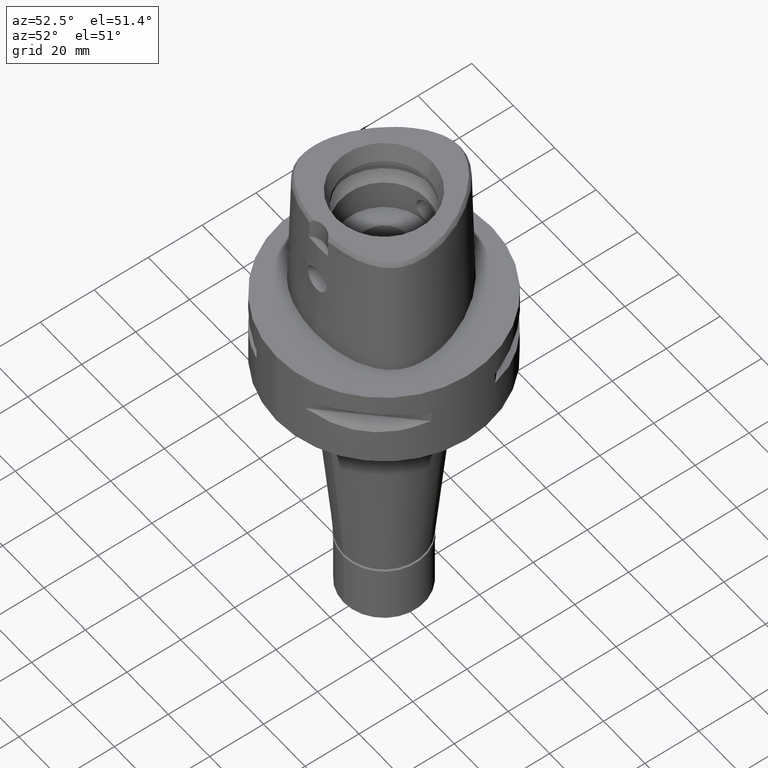
[diagram: clean part render]
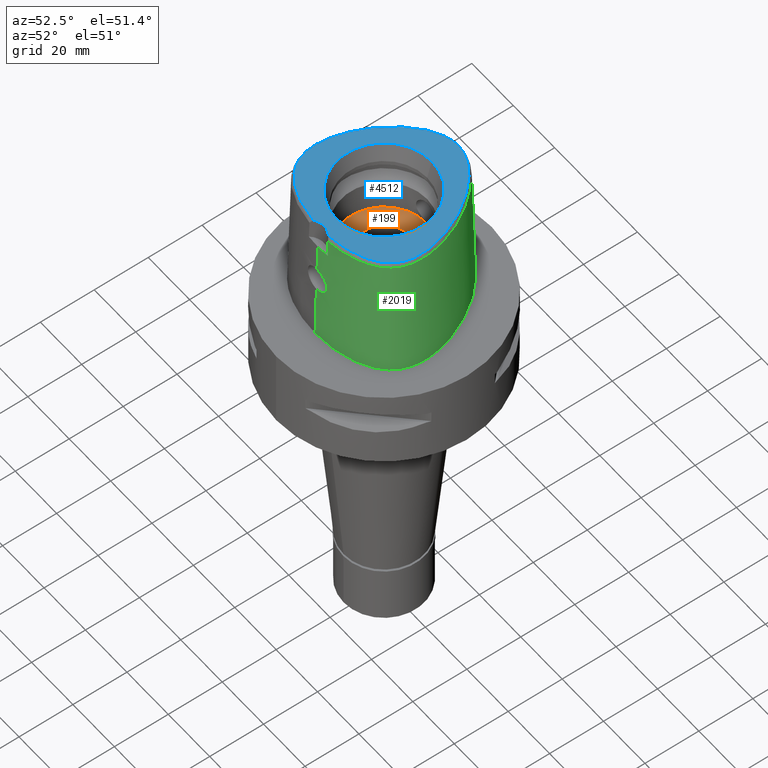
[diagram: same view with three faces highlighted in distinct colors, each labeled with its STEP entity id]
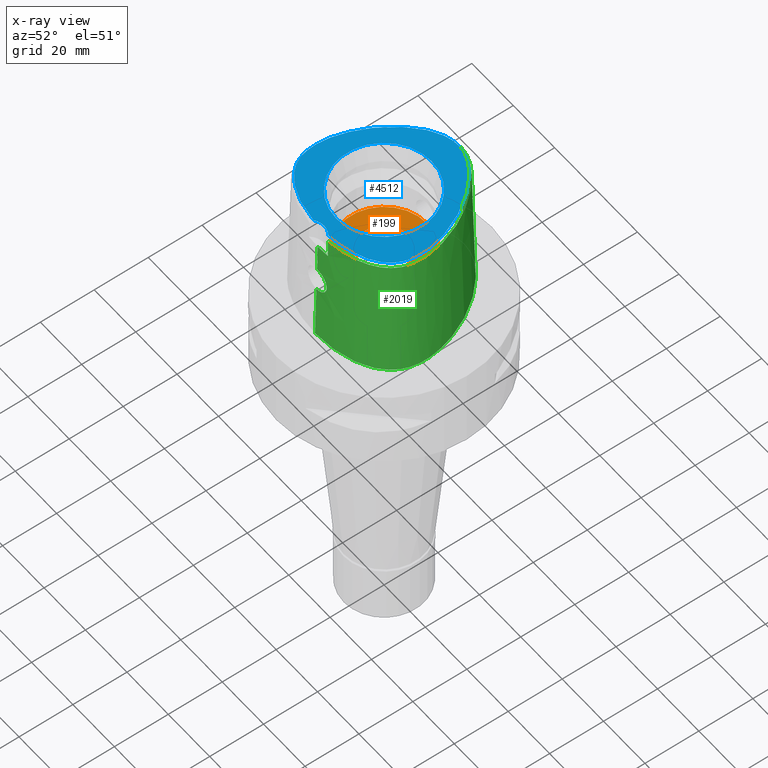
[diagram: x-ray of the same camera — body ghosted, the three highlighted faces saturated]
A machine part, auxiliary view with three faces highlighted in distinct colors.
The next image is the same camera in x-ray (body ghosted, the three faces saturated) — at least one of them is partly hidden behind the body in this view.
Their STEP definitions:

[orange] entity #199 — the highlighted planar face has unit normal (0, 0, -1).
#190 = CARTESIAN_POINT ( 'NONE',  ( 0.0000000000000000000, 0.0000000000000000000, 20.00000000000000000 ) ) ;
#199 = ADVANCED_FACE ( 'NONE', ( #3538, #5046 ), #4720, .F. ) ;
#217 = DIRECTION ( 'NONE',  ( 0.0000000000000000000, 0.0000000000000000000, 1.000000000000000000 ) ) ;
#276 = EDGE_CURVE ( 'NONE', #1156, #3808, #3494, .T. ) ;
#288 = EDGE_LOOP ( 'NONE', ( #4421, #2677 ) ) ;
#295 = DIRECTION ( 'NONE',  ( 0.0000000000000000000, 1.000000000000000000, 0.0000000000000000000 ) ) ;
#524 = VERTEX_POINT ( 'NONE', #4711 ) ;
#681 = CARTESIAN_POINT ( 'NONE',  ( 0.0000000000000000000, 0.0000000000000000000, 20.00000000000000000 ) ) ;
#782 = AXIS2_PLACEMENT_3D ( 'NONE', #190, #217, #2608 ) ;
#1100 = DIRECTION ( 'NONE',  ( 0.0000000000000000000, 0.0000000000000000000, -1.000000000000000000 ) ) ;
#1156 = VERTEX_POINT ( 'NONE', #4217 ) ;
#1183 = CARTESIAN_POINT ( 'NONE',  ( 0.0000000000000000000, 0.0000000000000000000, 20.00000000000000000 ) ) ;
#1283 = CARTESIAN_POINT ( 'NONE',  ( 0.0000000000000000000, -9.000000000000000000, 20.00000000000000000 ) ) ;
#1337 = DIRECTION ( 'NONE',  ( 0.0000000000000000000, 0.0000000000000000000, 1.000000000000000000 ) ) ;
#1793 = DIRECTION ( 'NONE',  ( 0.0000000000000000000, 1.000000000000000000, 0.0000000000000000000 ) ) ;
#2160 = DIRECTION ( 'NONE',  ( 0.0000000000000000000, -1.000000000000000000, 0.0000000000000000000 ) ) ;
#2196 = ORIENTED_EDGE ( 'NONE', *, *, #276, .F. ) ;
#2381 = EDGE_CURVE ( 'NONE', #524, #3294, #4679, .T. ) ;
#2608 = DIRECTION ( 'NONE',  ( 0.0000000000000000000, -1.000000000000000000, 0.0000000000000000000 ) ) ;
#2611 = CIRCLE ( 'NONE', #4181, 16.00000000000000000 ) ;
#2677 = ORIENTED_EDGE ( 'NONE', *, *, #2381, .F. ) ;
#2906 = AXIS2_PLACEMENT_3D ( 'NONE', #1183, #4345, #5135 ) ;
#3294 = VERTEX_POINT ( 'NONE', #1283 ) ;
#3308 = CARTESIAN_POINT ( 'NONE',  ( 0.0000000000000000000, 0.0000000000000000000, 20.00000000000000000 ) ) ;
#3494 = CIRCLE ( 'NONE', #4575, 16.00000000000000000 ) ;
#3496 = ORIENTED_EDGE ( 'NONE', *, *, #4382, .F. ) ;
#3507 = AXIS2_PLACEMENT_3D ( 'NONE', #3308, #1337, #1793 ) ;
#3538 = FACE_OUTER_BOUND ( 'NONE', #3728, .T. ) ;
#3728 = EDGE_LOOP ( 'NONE', ( #3496, #2196 ) ) ;
#3775 = CARTESIAN_POINT ( 'NONE',  ( 0.0000000000000000000, 0.0000000000000000000, 20.00000000000000000 ) ) ;
#3808 = VERTEX_POINT ( 'NONE', #4545 ) ;
#4130 = DIRECTION ( 'NONE',  ( 0.0000000000000000000, 0.0000000000000000000, -1.000000000000000000 ) ) ;
#4181 = AXIS2_PLACEMENT_3D ( 'NONE', #3775, #4130, #2160 ) ;
#4217 = CARTESIAN_POINT ( 'NONE',  ( 0.0000000000000000000, 16.00000000000000000, 20.00000000000000000 ) ) ;
#4345 = DIRECTION ( 'NONE',  ( 0.0000000000000000000, 0.0000000000000000000, -1.000000000000000000 ) ) ;
#4382 = EDGE_CURVE ( 'NONE', #3808, #1156, #2611, .T. ) ;
#4421 = ORIENTED_EDGE ( 'NONE', *, *, #4463, .F. ) ;
#4463 = EDGE_CURVE ( 'NONE', #3294, #524, #4778, .T. ) ;
#4545 = CARTESIAN_POINT ( 'NONE',  ( 0.0000000000000000000, -16.00000000000000000, 20.00000000000000000 ) ) ;
#4575 = AXIS2_PLACEMENT_3D ( 'NONE', #681, #1100, #295 ) ;
#4679 = CIRCLE ( 'NONE', #3507, 9.000000000000000000 ) ;
#4711 = CARTESIAN_POINT ( 'NONE',  ( 0.0000000000000000000, 9.000000000000000000, 20.00000000000000000 ) ) ;
#4720 = PLANE ( 'NONE',  #2906 ) ;
#4778 = CIRCLE ( 'NONE', #782, 9.000000000000000000 ) ;
#5046 = FACE_BOUND ( 'NONE', #288, .T. ) ;
#5135 = DIRECTION ( 'NONE',  ( 0.0000000000000000000, -1.000000000000000000, 0.0000000000000000000 ) ) ;

[blue] entity #4512 — the highlighted planar face has unit normal (0, 0, 1).
#1 = CARTESIAN_POINT ( 'NONE',  ( 3.680297990135762198, 27.05591354500018753, 48.00000000000627409 ) ) ;
#5 = CARTESIAN_POINT ( 'NONE',  ( -4.489954052493332348, 26.80204639255186549, 48.00000000000155609 ) ) ;
#32 = CARTESIAN_POINT ( 'NONE',  ( 12.14811716929801300, 22.13187320259065416, 48.00000000000274980 ) ) ;
#56 = CARTESIAN_POINT ( 'NONE',  ( 16.58774972841575845, 17.44522137221830604, 48.00000000000598277 ) ) ;
#83 = CARTESIAN_POINT ( 'NONE',  ( -15.47246034441952567, 18.77924032487290162, 48.00000000000662936 ) ) ;
#111 = CARTESIAN_POINT ( 'NONE',  ( -2.139154069216931742, 27.40627708266839235, 48.00000000000774492 ) ) ;
#153 = CARTESIAN_POINT ( 'NONE',  ( 3.652533226355999751, -23.43985283522000174, 48.00000000000000000 ) ) ;
#198 = CIRCLE ( 'NONE', #3114, 17.71487483155999954 ) ;
#264 = EDGE_LOOP ( 'NONE', ( #3547, #1039, #3095 ) ) ;
#268 = CARTESIAN_POINT ( 'NONE',  ( 0.0000000000000000000, 0.0000000000000000000, 48.00000000000000000 ) ) ;
#308 = CARTESIAN_POINT ( 'NONE',  ( -24.00645943640589053, -13.59502449743925645, 48.00000000000818545 ) ) ;
#355 = CARTESIAN_POINT ( 'NONE',  ( 23.18188527997866544, 6.195157684106624707, 48.00000000000344613 ) ) ;
#374 = VERTEX_POINT ( 'NONE', #3277 ) ;
#380 = CARTESIAN_POINT ( 'NONE',  ( 25.79052179444724757, -6.319355031379641829, 48.00000000001378453 ) ) ;
#385 = CARTESIAN_POINT ( 'NONE',  ( -25.78814000082636682, -5.219183132163908390, 48.00000000000384404 ) ) ;
#401 = CARTESIAN_POINT ( 'NONE',  ( 20.51253914624653163, -17.67119446945624617, 47.99999999999898392 ) ) ;
#405 = CARTESIAN_POINT ( 'NONE',  ( 0.0000000000000000000, -17.71487483155999954, 48.00000000000000000 ) ) ;
#422 = CARTESIAN_POINT ( 'NONE',  ( 24.32795549673362956, -12.97211154200113370, 48.00000000001178790 ) ) ;
#441 = CARTESIAN_POINT ( 'NONE',  ( 0.0000000000000000000, -28.19999999999999929, 48.00000000000000000 ) ) ;
#449 = CARTESIAN_POINT ( 'NONE',  ( -2.553408000997999971E-11, 27.58331912251000162, 48.00000000000000000 ) ) ;
#454 = CARTESIAN_POINT ( 'NONE',  ( -5.330667503235264171, 26.48886318459890887, 48.00000000000245848 ) ) ;
#597 = DIRECTION ( 'NONE',  ( 0.0000000000000000000, -1.000000000000000000, 0.0000000000000000000 ) ) ;
#635 = FACE_OUTER_BOUND ( 'NONE', #264, .T. ) ;
#691 = CARTESIAN_POINT ( 'NONE',  ( -14.81597509389810341, -20.94671102737374824, 47.99999999999746336 ) ) ;
#720 = CARTESIAN_POINT ( 'NONE',  ( -22.32985285487972860, -15.94550431090771525, 48.00000000000452616 ) ) ;
#742 = CARTESIAN_POINT ( 'NONE',  ( -20.51077223929994986, -17.67263102127178342, 48.00000000000376588 ) ) ;
#764 = CARTESIAN_POINT ( 'NONE',  ( 12.15683615293508346, -21.88711351950870565, 48.00000000000375877 ) ) ;
#769 = CARTESIAN_POINT ( 'NONE',  ( -13.53666233734178981, -21.43297585322252630, 47.99999999999994316 ) ) ;
#791 = CARTESIAN_POINT ( 'NONE',  ( 22.33100613406205426, -15.94420923685231983, 48.00000000000456879 ) ) ;
#794 = CARTESIAN_POINT ( 'NONE',  ( -2.895995683504754226, 27.25632069045362726, 47.99999999999965183 ) ) ;
#811 = CARTESIAN_POINT ( 'NONE',  ( 2.140583849880590250, 27.40603513869652019, 48.00000000000656541 ) ) ;
#835 = CARTESIAN_POINT ( 'NONE',  ( 10.03889926273841837, 23.82643791975764458, 48.00000000001134737 ) ) ;
#840 = CARTESIAN_POINT ( 'NONE',  ( -0.6921675427513019896, 27.57027402750101786, 48.00000000000871836 ) ) ;
#861 = CARTESIAN_POINT ( 'NONE',  ( 0.6937438505403403788, 27.57019898701157601, 48.00000000000598277 ) ) ;
#981 = CARTESIAN_POINT ( 'NONE',  ( -23.18199738827263801, 6.194888181192760079, 47.99999999999587175 ) ) ;
#1039 = ORIENTED_EDGE ( 'NONE', *, *, #4136, .F. ) ;
#1127 = DIRECTION ( 'NONE',  ( 0.6087555377260667200, 0.7933578607966567109, 0.0000000000000000000 ) ) ;
#1143 = CARTESIAN_POINT ( 'NONE',  ( -15.99341638177290115, -20.43562447749014765, 48.00000000000018474 ) ) ;
#1164 = CARTESIAN_POINT ( 'NONE',  ( 14.81975810290976980, -20.94516920634634261, 48.00000000000574829 ) ) ;
#1177 = EDGE_CURVE ( 'NONE', #374, #3798, #4525, .T. ) ;
#1189 = CARTESIAN_POINT ( 'NONE',  ( 25.41171405093978208, -1.468769615952986163, 48.00000000001289635 ) ) ;
#1216 = CARTESIAN_POINT ( 'NONE',  ( 21.64191216433456333, 9.570096010441679013, 48.00000000000925127 ) ) ;
#1235 = CARTESIAN_POINT ( 'NONE',  ( 14.35433142683476326, 20.00604447574794165, 47.99999999999931788 ) ) ;
#1259 = CARTESIAN_POINT ( 'NONE',  ( 23.65541542675246589, -14.18997106324635205, 48.00000000000774492 ) ) ;
#1413 = PLANE ( 'NONE',  #4929 ) ;
#1498 = CARTESIAN_POINT ( 'NONE',  ( -9.073991136863204687, -22.67767904108685784, 47.99999999999887734 ) ) ;
#1524 = CARTESIAN_POINT ( 'NONE',  ( 0.0000000000000000000, 17.71487483155999954, 48.00000000000000000 ) ) ;
#1551 = EDGE_CURVE ( 'NONE', #3798, #2229, #3918, .T. ) ;
#1552 = CARTESIAN_POINT ( 'NONE',  ( 18.06021793802453956, -19.35923481219365172, 48.00000000000142109 ) ) ;
#1576 = CARTESIAN_POINT ( 'NONE',  ( 1.407937999592558720, 27.50970958195385307, 48.00000000000411404 ) ) ;
#1579 = CARTESIAN_POINT ( 'NONE',  ( -24.34597371488804285, 2.947766319393087642, 48.00000000000777334 ) ) ;
#1607 = AXIS2_PLACEMENT_3D ( 'NONE', #1689, #2934, #597 ) ;
#1622 = CARTESIAN_POINT ( 'NONE',  ( 19.78466709480228047, 12.88995995782244641, 48.00000000000724043 ) ) ;
#1625 = CARTESIAN_POINT ( 'NONE',  ( -12.14717624329265533, 22.13270362300982796, 48.00000000000715517 ) ) ;
#1642 = CARTESIAN_POINT ( 'NONE',  ( 25.74155027847324817, -7.352132003090048329, 48.00000000000844125 ) ) ;
#1689 = CARTESIAN_POINT ( 'NONE',  ( 0.0000000000000000000, 0.0000000000000000000, 48.00000000000000000 ) ) ;
#1781 = CARTESIAN_POINT ( 'NONE',  ( -25.41186334294972937, -1.469639852780138201, 48.00000000000411404 ) ) ;
#1822 = VERTEX_POINT ( 'NONE', #1524 ) ;
#1874 = ORIENTED_EDGE ( 'NONE', *, *, #4675, .F. ) ;
#1879 = CARTESIAN_POINT ( 'NONE',  ( -25.64644810599435232, -8.319642749356479072, 48.00000000000247269 ) ) ;
#1909 = CARTESIAN_POINT ( 'NONE',  ( -25.74147105879062991, -7.353240448490128145, 48.00000000000689937 ) ) ;
#1935 = CARTESIAN_POINT ( 'NONE',  ( 25.78811069501452735, -5.218135357747353709, 48.00000000000760281 ) ) ;
#1961 = CARTESIAN_POINT ( 'NONE',  ( 23.26225374360183906, -14.77782433121586259, 48.00000000000728306 ) ) ;
#1966 = CARTESIAN_POINT ( 'NONE',  ( -24.89056289417114343, -11.61105474084639688, 48.00000000000351719 ) ) ;
#1982 = CARTESIAN_POINT ( 'NONE',  ( 22.45659887780471919, 7.877591736060170824, 48.00000000000790124 ) ) ;
#1986 = CARTESIAN_POINT ( 'NONE',  ( -11.07816725942145375, 23.03133635782254629, 48.00000000000027001 ) ) ;
#2005 = CARTESIAN_POINT ( 'NONE',  ( 24.89096213678472225, -11.60991207239310441, 48.00000000000385114 ) ) ;
#2011 = CARTESIAN_POINT ( 'NONE',  ( -22.45665628223817478, 7.877471279648056601, 47.99999999999953104 ) ) ;
#2024 = DIRECTION ( 'NONE',  ( 0.0000000000000000000, 0.0000000000000000000, 1.000000000000000000 ) ) ;
#2033 = CARTESIAN_POINT ( 'NONE',  ( 5.331982176208730273, 26.48833275828421208, 48.00000000000827072 ) ) ;
#2038 = CARTESIAN_POINT ( 'NONE',  ( -18.76020591297942275, 14.48413071376346473, 48.00000000000462563 ) ) ;
#2048 = CARTESIAN_POINT ( 'NONE',  ( 3.652533226355999751, -23.43985283522000174, 48.00000000000000000 ) ) ;
#2055 = CARTESIAN_POINT ( 'NONE',  ( 3.695072017992800273, -23.43648746218407908, 48.00000000000586908 ) ) ;
#2102 = ORIENTED_EDGE ( 'NONE', *, *, #3065, .F. ) ;
#2166 = B_SPLINE_CURVE_WITH_KNOTS ( 'NONE', 3,
 ( #2978, #3945, #4729, #2304, #5089, #1498, #4571, #3113, #769, #691, #1143, #4273, #4707, #2719, #5147, #742, #3081, #3886, #720, #2744, #4143, #2591, #308, #4326, #2357, #1966, #2174, #2276, #3861, #1879, #1909, #2328, #385, #2563, #3497, #1781, #3550, #3759, #1579, #3165, #981, #2011, #2457, #3212, #3573, #2038, #4845, #2382, #83, #4456, #2431, #1625, #1986, #4358, #2769, #4780, #4799, #3644, #454, #5, #3189, #794, #111, #2841, #840, #3258, #2870 ),
 .UNSPECIFIED., .F., .F.,
 ( 4, 1, 1, 1, 1, 1, 1, 1, 1, 1, 1, 1, 1, 1, 1, 1, 1, 1, 1, 1, 1, 1, 1, 1, 1, 1, 1, 1, 1, 1, 1, 1, 1, 1, 1, 1, 1, 1, 1, 1, 1, 1, 1, 1, 1, 1, 1, 1, 1, 1, 1, 1, 1, 1, 1, 1, 1, 1, 1, 1, 1, 1, 1, 1, 4 ),
 ( 0.0000000000000000000, 0.001025211071800091744, 0.01688195375320000746, 0.03273869643469995427, 0.04859543911610009204, 0.06445218179750000775, 0.08030892447889992347, 0.09616566716030006123, 0.1120224098416999770, 0.1278791525231999238, 0.1437358952045000304, 0.1595926378859000572, 0.1754493805672999729, 0.1913061232486999996, 0.2071628659301000264, 0.2230196086114999421, 0.2388763512929999999, 0.2547330939744000267, 0.2705898366558000534, 0.2864465793371999691, 0.3023033220184999648, 0.3181600646999001025, 0.3340168073814000493, 0.3498735500627999651, 0.3657302927441999918, 0.3815870354256000185, 0.3974437781070000453, 0.4133005207884000720, 0.4291572634697999877, 0.4450140061513000456, 0.4608707488326000412, 0.4767274915139999569, 0.4925842341953999837, 0.5084409768768000104, 0.5242977195582000371, 0.5401544622396999840, 0.5560112049211000107, 0.5718679476025000374, 0.5877246902838999532, 0.6035814329652000598, 0.6194381756466000866, 0.6352949183280000023, 0.6511516610095000601, 0.6670084036908999758, 0.6828651463723000026, 0.6987218890537000293, 0.7145786317350999450, 0.7304353744164999718, 0.7462921170980000296, 0.7621488597793000253, 0.7780056024607000520, 0.7938623451421000787, 0.8097190878234999944, 0.8255758305049000212, 0.8414325731862999369, 0.8572893158677999947, 0.8731460585492000215, 0.8890028012306000482, 0.9048595439119599959, 0.9207162865933600226, 0.9365730292747700414, 0.9524297719561699571, 0.9682865146375799759, 0.9841432573189800026, 1.000000000000000000 ),
 .UNSPECIFIED. ) ;
#2174 = CARTESIAN_POINT ( 'NONE',  ( -25.12916461511102995, -10.86541650940823445, 47.99999999999922551 ) ) ;
#2216 = CARTESIAN_POINT ( 'NONE',  ( 0.0000000000000000000, 0.0000000000000000000, 48.00000000000000000 ) ) ;
#2229 = VERTEX_POINT ( 'NONE', #2508 ) ;
#2276 = CARTESIAN_POINT ( 'NONE',  ( -25.33661149944440538, -10.07113708571157495, 48.00000000000659384 ) ) ;
#2304 = CARTESIAN_POINT ( 'NONE',  ( -5.621443921965724400, -23.25305008129026518, 48.00000000000829914 ) ) ;
#2328 = CARTESIAN_POINT ( 'NONE',  ( -25.79049889473787616, -6.320436011330484050, 47.99999999999741362 ) ) ;
#2351 = CARTESIAN_POINT ( 'NONE',  ( 9.029067995419627124, 24.52649931749731849, 48.00000000000736833 ) ) ;
#2357 = CARTESIAN_POINT ( 'NONE',  ( -24.62272929601504146, -12.31262433038932080, 47.99999999999783995 ) ) ;
#2377 = CARTESIAN_POINT ( 'NONE',  ( 20.74842146925734454, 11.24651447313797981, 48.00000000000755307 ) ) ;
#2382 = CARTESIAN_POINT ( 'NONE',  ( -16.58720414441551227, 17.44590650687256073, 47.99999999999414513 ) ) ;
#2398 = CARTESIAN_POINT ( 'NONE',  ( 2.897393261679240606, 27.25600202852899301, 48.00000000000158451 ) ) ;
#2424 = CARTESIAN_POINT ( 'NONE',  ( 4.491298471526994796, 26.80158405531638266, 48.00000000000458300 ) ) ;
#2431 = CARTESIAN_POINT ( 'NONE',  ( -13.24182048140766454, 21.12501160990628790, 47.99999999999421618 ) ) ;
#2457 = CARTESIAN_POINT ( 'NONE',  ( -21.64189922317061843, 9.570126786845092326, 48.00000000000027711 ) ) ;
#2508 = CARTESIAN_POINT ( 'NONE',  ( -3.652529789304999941, -23.43985019791999846, 48.00000000000000000 ) ) ;
#2563 = CARTESIAN_POINT ( 'NONE',  ( -25.72853642076715275, -4.045150056829699636, 48.00000000000047606 ) ) ;
#2591 = CARTESIAN_POINT ( 'NONE',  ( -23.65469623604841942, -14.19111717468738831, 48.00000000000031264 ) ) ;
#2719 = CARTESIAN_POINT ( 'NONE',  ( -18.95547945644992183, -18.80500687501592694, 48.00000000000287770 ) ) ;
#2738 = DIRECTION ( 'NONE',  ( 0.0000000000000000000, 1.000000000000000000, 0.0000000000000000000 ) ) ;
#2740 = CARTESIAN_POINT ( 'NONE',  ( 18.95779336836574913, -18.80349047535468898, 48.00000000000578382 ) ) ;
#2744 = CARTESIAN_POINT ( 'NONE',  ( -22.82072892860547597, -15.36398915678375232, 48.00000000000641620 ) ) ;
#2765 = CARTESIAN_POINT ( 'NONE',  ( 25.12949508357400319, -10.86427360166302591, 48.00000000000234479 ) ) ;
#2769 = CARTESIAN_POINT ( 'NONE',  ( -9.027913645275798871, 24.52726119145112449, 47.99999999999953815 ) ) ;
#2789 = CARTESIAN_POINT ( 'NONE',  ( 24.78780591084244378, 1.407047860335326472, 48.00000000000244427 ) ) ;
#2809 = CARTESIAN_POINT ( 'NONE',  ( 24.62320007856895998, -12.31148373400931284, 48.00000000000670752 ) ) ;
#2835 = CARTESIAN_POINT ( 'NONE',  ( 13.24267791555492479, 21.12418368643687927, 48.00000000000446931 ) ) ;
#2841 = CARTESIAN_POINT ( 'NONE',  ( -1.406513445700786402, 27.50987728443544356, 48.00000000000476064 ) ) ;
#2870 = CARTESIAN_POINT ( 'NONE',  ( -2.553408000997999971E-11, 27.58331912251000162, 48.00000000000000000 ) ) ;
#2909 = CARTESIAN_POINT ( 'NONE',  ( 5.628119991152743751, -23.25222728396760630, 48.00000000001084999 ) ) ;
#2914 = DIRECTION ( 'NONE',  ( 0.0000000000000000000, 0.0000000000000000000, 1.000000000000000000 ) ) ;
#2934 = DIRECTION ( 'NONE',  ( 0.0000000000000000000, 0.0000000000000000000, 1.000000000000000000 ) ) ;
#2978 = CARTESIAN_POINT ( 'NONE',  ( -3.652529789304999941, -23.43985019791999846, 48.00000000000000000 ) ) ;
#3065 = EDGE_CURVE ( 'NONE', #4201, #1822, #4429, .T. ) ;
#3074 = DIRECTION ( 'NONE',  ( 0.0000000000000000000, 0.0000000000000000000, 1.000000000000000000 ) ) ;
#3081 = CARTESIAN_POINT ( 'NONE',  ( -21.17991838302091523, -17.09989881137762424, 48.00000000000522249 ) ) ;
#3095 = ORIENTED_EDGE ( 'NONE', *, *, #1551, .F. ) ;
#3113 = CARTESIAN_POINT ( 'NONE',  ( -12.15213727003041022, -21.88854758766736808, 48.00000000000298428 ) ) ;
#3114 = AXIS2_PLACEMENT_3D ( 'NONE', #268, #3074, #2738 ) ;
#3137 = CARTESIAN_POINT ( 'NONE',  ( 17.07549476911983177, -19.90378693825107348, 48.00000000001020339 ) ) ;
#3162 = CARTESIAN_POINT ( 'NONE',  ( 22.82172265263984201, -15.36274108902179236, 48.00000000001121947 ) ) ;
#3165 = CARTESIAN_POINT ( 'NONE',  ( -23.81131852266215176, 4.547972304023961243, 48.00000000000097344 ) ) ;
#3185 = CARTESIAN_POINT ( 'NONE',  ( 0.2325907962420734609, 27.58331912251555096, 48.00000000000294165 ) ) ;
#3189 = CARTESIAN_POINT ( 'NONE',  ( -3.678923649487293890, 27.05630543830459089, 47.99999999999973710 ) ) ;
#3209 = CARTESIAN_POINT ( 'NONE',  ( 8.053467330374072475, 25.13580020531944825, 48.00000000000638067 ) ) ;
#3212 = CARTESIAN_POINT ( 'NONE',  ( -20.74831938583742286, 11.24670202904645500, 48.00000000000016342 ) ) ;
#3228 = CARTESIAN_POINT ( 'NONE',  ( 25.33687583872261939, -10.06999584063571263, 48.00000000001010392 ) ) ;
#3258 = CARTESIAN_POINT ( 'NONE',  ( -0.2321695341564588289, 27.58331912251099283, 48.00000000000385825 ) ) ;
#3277 = CARTESIAN_POINT ( 'NONE',  ( -2.553408000997999971E-11, 27.58331912251000162, 48.00000000000000000 ) ) ;
#3497 = CARTESIAN_POINT ( 'NONE',  ( -25.60527911802817513, -2.795135548250403001, 48.00000000000083844 ) ) ;
#3501 = AXIS2_PLACEMENT_3D ( 'NONE', #441, #2024, #1127 ) ;
#3520 = CARTESIAN_POINT ( 'NONE',  ( 21.18145661121397083, -17.09850743469720413, 48.00000000000313349 ) ) ;
#3544 = CARTESIAN_POINT ( 'NONE',  ( 10.66892483387368173, -22.30459704281918576, 48.00000000001291056 ) ) ;
#3547 = ORIENTED_EDGE ( 'NONE', *, *, #1177, .F. ) ;
#3550 = CARTESIAN_POINT ( 'NONE',  ( -25.14146662215765460, -0.06794041304885302390, 48.00000000000117950 ) ) ;
#3568 = CARTESIAN_POINT ( 'NONE',  ( 25.51037851176552707, -9.222789616917806299, 48.00000000001028155 ) ) ;
#3573 = CARTESIAN_POINT ( 'NONE',  ( -19.78446217835472609, 12.89029827906574255, 48.00000000000104450 ) ) ;
#3593 = CARTESIAN_POINT ( 'NONE',  ( 21.78596494080833779, -16.52262878099943677, 48.00000000000477485 ) ) ;
#3619 = CARTESIAN_POINT ( 'NONE',  ( 25.72845965679162461, -4.044145215521642633, 48.00000000000808598 ) ) ;
#3644 = CARTESIAN_POINT ( 'NONE',  ( -6.203520479232063956, 26.11107304853146971, 48.00000000000322586 ) ) ;
#3759 = CARTESIAN_POINT ( 'NONE',  ( -24.78798701905652635, 1.406367702425293187, 47.99999999999973710 ) ) ;
#3797 = FACE_BOUND ( 'NONE', #4748, .T. ) ;
#3798 = VERTEX_POINT ( 'NONE', #2048 ) ;
#3861 = CARTESIAN_POINT ( 'NONE',  ( -25.51017841222277127, -9.223923978198950380, 48.00000000000337508 ) ) ;
#3886 = CARTESIAN_POINT ( 'NONE',  ( -21.78463111685880094, -16.52397191851279601, 48.00000000000417089 ) ) ;
#3910 = CARTESIAN_POINT ( 'NONE',  ( 18.76051936065055514, 14.48366014233120325, 48.00000000001345768 ) ) ;
#3918 = CIRCLE ( 'NONE', #3501, 6.000000000000002665 ) ;
#3940 = CARTESIAN_POINT ( 'NONE',  ( 11.07918744940895905, 23.03051546725328080, 48.00000000000730438 ) ) ;
#3945 = CARTESIAN_POINT ( 'NONE',  ( -3.692743038414233681, -23.43666978757074659, 48.00000000000305533 ) ) ;
#3964 = CARTESIAN_POINT ( 'NONE',  ( 25.14129527416374543, -0.06715740301647873944, 48.00000000000670752 ) ) ;
#3988 = CARTESIAN_POINT ( 'NONE',  ( 15.47311546589430264, 18.77848662924856171, 48.00000000000814282 ) ) ;
#4009 = CARTESIAN_POINT ( 'NONE',  ( 24.34579675531368181, 2.948329282943224605, 48.00000000001119105 ) ) ;
#4107 = DIRECTION ( 'NONE',  ( 1.000000000000000000, 0.0000000000000000000, 0.0000000000000000000 ) ) ;
#4136 = EDGE_CURVE ( 'NONE', #2229, #374, #2166, .T. ) ;
#4143 = CARTESIAN_POINT ( 'NONE',  ( -23.26140416529909416, -14.77902311537956770, 47.99999999999810996 ) ) ;
#4201 = VERTEX_POINT ( 'NONE', #405 ) ;
#4273 = CARTESIAN_POINT ( 'NONE',  ( -17.07251346402655656, -19.90534499102476218, 48.00000000000000000 ) ) ;
#4320 = CARTESIAN_POINT ( 'NONE',  ( 13.54089058450866823, -21.43147460489001332, 48.00000000001113420 ) ) ;
#4326 = CARTESIAN_POINT ( 'NONE',  ( -24.32740975879155343, -12.97324844465586047, 47.99999999999867839 ) ) ;
#4352 = CARTESIAN_POINT ( 'NONE',  ( 7.112111422624410650, 25.66156608519583671, 48.00000000000729727 ) ) ;
#4358 = CARTESIAN_POINT ( 'NONE',  ( -10.03780479163920170, 23.82723751530802758, 48.00000000000742517 ) ) ;
#4377 = CARTESIAN_POINT ( 'NONE',  ( 25.64658655008186727, -8.318518488027640601, 48.00000000000973444 ) ) ;
#4399 = CARTESIAN_POINT ( 'NONE',  ( 24.00708073425573374, -13.59389763843092602, 48.00000000001119815 ) ) ;
#4424 = CARTESIAN_POINT ( 'NONE',  ( 17.68852893097922063, 16.00958332232146120, 48.00000000000838440 ) ) ;
#4429 = CIRCLE ( 'NONE', #1607, 17.71487483155999954 ) ;
#4456 = CARTESIAN_POINT ( 'NONE',  ( -14.35357212122985970, 20.00684525407520198, 47.99999999999607070 ) ) ;
#4512 = ADVANCED_FACE ( 'NONE', ( #635, #3797 ), #1413, .T. ) ;
#4525 = B_SPLINE_CURVE_WITH_KNOTS ( 'NONE', 3,
 ( #449, #3185, #861, #1576, #811, #2398, #1, #2424, #2033, #4776, #4352, #3209, #2351, #835, #3940, #32, #2835, #1235, #3988, #56, #4424, #3910, #1622, #2377, #1216, #1982, #355, #4817, #4009, #2789, #3964, #1189, #4795, #3619, #1935, #380, #1642, #4377, #3568, #3228, #2765, #2005, #2809, #422, #4399, #1259, #1961, #3162, #791, #3593, #3520, #401, #5117, #2740, #1552, #3137, #4724, #1164, #4320, #764, #3544, #5142, #4752, #2909, #4914, #2055, #153 ),
 .UNSPECIFIED., .F., .F.,
 ( 4, 1, 1, 1, 1, 1, 1, 1, 1, 1, 1, 1, 1, 1, 1, 1, 1, 1, 1, 1, 1, 1, 1, 1, 1, 1, 1, 1, 1, 1, 1, 1, 1, 1, 1, 1, 1, 1, 1, 1, 1, 1, 1, 1, 1, 1, 1, 1, 1, 1, 1, 1, 1, 1, 1, 1, 1, 1, 1, 1, 1, 1, 1, 1, 4 ),
 ( 0.0000000000000000000, 0.01585579672639991777, 0.03171159345210006197, 0.04756739017779998413, 0.06342318690360004840, 0.07927898362929997056, 0.09513478035499989272, 0.1109905770807000369, 0.1268463738063999591, 0.1427021705320999923, 0.1585579672578999455, 0.1744137639835999787, 0.1902695607093000119, 0.2061253574349999340, 0.2219811541607000782, 0.2378369508864000004, 0.2536927476120999225, 0.2695485443380000179, 0.2854043410636999401, 0.3012601377893999732, 0.3171159345151000064, 0.3329717312407999286, 0.3488275279665000728, 0.3646833246923000260, 0.3805391214179999482, 0.3963949181436999813, 0.4122507148694000145, 0.4281065115951000477, 0.4439623083207999699, 0.4598181050465000030, 0.4756739017723000673, 0.4915296984979999895, 0.5073854952237000226, 0.5232412919494000558, 0.5390970886750999780, 0.5549528854007999001, 0.5708086821265999644, 0.5866644788522999976, 0.6025202755780000308, 0.6183760723036999529, 0.6342318690293999861, 0.6500876657551999394, 0.6659434624808999725, 0.6817992592067000368, 0.6976550559323999590, 0.7135108526580999921, 0.7293666493838000253, 0.7452224461095000585, 0.7610782428351999807, 0.7769340395610000449, 0.7927898362866999671, 0.8086456330124000003, 0.8245014297380999224, 0.8403572264637999556, 0.8562130231894999888, 0.8720688199152000220, 0.8879246166409999752, 0.9037804133667199924, 0.9196362100924300176, 0.9354920068181400428, 0.9513478035438499569, 0.9672036002695799661, 0.9830593969952899913, 0.9989151937210170029, 1.000000000000000000 ),
 .UNSPECIFIED. ) ;
#4571 = CARTESIAN_POINT ( 'NONE',  ( -10.66374418708299743, -22.30593187528319277, 48.00000000000076739 ) ) ;
#4675 = EDGE_CURVE ( 'NONE', #1822, #4201, #198, .T. ) ;
#4707 = CARTESIAN_POINT ( 'NONE',  ( -18.05758772859721972, -19.36077714811088768, 48.00000000000043343 ) ) ;
#4724 = CARTESIAN_POINT ( 'NONE',  ( 15.99678577414120895, -20.43406366493449866, 48.00000000001095657 ) ) ;
#4729 = CARTESIAN_POINT ( 'NONE',  ( -4.354443962178200067, -23.38344539136355138, 48.00000000000123634 ) ) ;
#4748 = EDGE_LOOP ( 'NONE', ( #2102, #1874 ) ) ;
#4752 = CARTESIAN_POINT ( 'NONE',  ( 7.396182376302958161, -22.99483633013690564, 48.00000000000289901 ) ) ;
#4776 = CARTESIAN_POINT ( 'NONE',  ( 6.204805495149289030, 26.11047595223794815, 48.00000000000995470 ) ) ;
#4780 = CARTESIAN_POINT ( 'NONE',  ( -8.052265342578346363, 25.13651235630111813, 47.99999999999982947 ) ) ;
#4795 = CARTESIAN_POINT ( 'NONE',  ( 25.60516200877613358, -2.794192459353092239, 48.00000000000562750 ) ) ;
#4799 = CARTESIAN_POINT ( 'NONE',  ( -7.110865803014530862, 25.66222324296530033, 48.00000000000590461 ) ) ;
#4817 = CARTESIAN_POINT ( 'NONE',  ( 23.81116373424173460, 4.548397580873865031, 48.00000000000790834 ) ) ;
#4845 = CARTESIAN_POINT ( 'NONE',  ( -17.68810259327362999, 16.01016819645197486, 48.00000000000466116 ) ) ;
#4914 = CARTESIAN_POINT ( 'NONE',  ( 4.358863301033515825, -23.38302754646094428, 48.00000000000966338 ) ) ;
#4929 = AXIS2_PLACEMENT_3D ( 'NONE', #2216, #2914, #4107 ) ;
#5089 = CARTESIAN_POINT ( 'NONE',  ( -7.390055773641477366, -22.99586658607795187, 48.00000000000370903 ) ) ;
#5117 = CARTESIAN_POINT ( 'NONE',  ( 19.77345709183151712, -18.23990985540307719, 48.00000000000410694 ) ) ;
#5142 = CARTESIAN_POINT ( 'NONE',  ( 9.079666835764083288, -22.67647771863662953, 48.00000000001205080 ) ) ;
#5147 = CARTESIAN_POINT ( 'NONE',  ( -19.77143225161517037, -18.24138896764386786, 48.00000000000360245 ) ) ;

[green] entity #2019 — the highlighted face is a freeform B-spline surface patch.
#2 = CARTESIAN_POINT ( 'NONE',  ( 4.496850936021978384, -24.75618253903772725, 24.29074513878774155 ) ) ;
#20 = CARTESIAN_POINT ( 'NONE',  ( 27.10051712308201033, -11.41106443871012388, 2.097409851809124703E-06 ) ) ;
#33 = CARTESIAN_POINT ( 'NONE',  ( 3.115833847005022417, -24.76582665838805042, 28.31908668410563479 ) ) ;
#58 = CARTESIAN_POINT ( 'NONE',  ( 3.227783996387109333, -24.76107025147647533, 28.20686722737168495 ) ) ;
#78 = CARTESIAN_POINT ( 'NONE',  ( 4.537017841947839081, -24.74324082396890390, 24.64916680772596536 ) ) ;
#87 = CARTESIAN_POINT ( 'NONE',  ( 26.56868348264763569, -7.988862950299892240, 46.52070085311218861 ) ) ;
#107 = CARTESIAN_POINT ( 'NONE',  ( 24.79336081507999978, -16.13554022494000151, -0.9304145058225000708 ) ) ;
#131 = CARTESIAN_POINT ( 'NONE',  ( 15.15935281730000028, -22.61055603333999997, 15.19677026177000201 ) ) ;
#137 = CARTESIAN_POINT ( 'NONE',  ( -1.451045074373000022E-08, -24.57504746727000011, 40.00000005214000254 ) ) ;
#155 = CARTESIAN_POINT ( 'NONE',  ( 11.43012068080999910, -22.98864605636000036, 47.45113979694999529 ) ) ;
#164 = CARTESIAN_POINT ( 'NONE',  ( 26.53043812451744898, -3.252830914800959761, 46.52070254359990287 ) ) ;
#180 = B_SPLINE_CURVE_WITH_KNOTS ( 'NONE', 3,
 ( #2871, #2135, #4537, #2555 ),
 .UNSPECIFIED., .F., .F.,
 ( 4, 4 ),
 ( 0.0000000000000000000, 1.000000000000000000 ),
 .UNSPECIFIED. ) ;
#183 = CARTESIAN_POINT ( 'NONE',  ( 23.15870204255000075, -17.49879693389999957, 15.19677026177000201 ) ) ;
#194 = CARTESIAN_POINT ( 'NONE',  ( 24.48700992949023814, 6.834036305494689323, 46.52070592457531717 ) ) ;
#212 = CARTESIAN_POINT ( 'NONE',  ( 2.354169165374999650, -24.81494117646000319, 31.32395502936000042 ) ) ;
#233 = CARTESIAN_POINT ( 'NONE',  ( 21.65785136316000248, 12.50416149393999987, 31.32395502936000042 ) ) ;
#261 = CARTESIAN_POINT ( 'NONE',  ( -0.5711750985022999716, 28.78275048085999899, 31.32395502936000042 ) ) ;
#271 = CARTESIAN_POINT ( 'NONE',  ( 2.192364263611902953, -25.00047163864783073, 21.00192190660552427 ) ) ;
#293 = CARTESIAN_POINT ( 'NONE',  ( 21.30723580559000041, 12.30173102546999964, 47.45113979694999529 ) ) ;
#302 = CARTESIAN_POINT ( 'NONE',  ( 1.157035249440266922, -25.04636291852922625, 20.59695966233179476 ) ) ;
#321 = CARTESIAN_POINT ( 'NONE',  ( 5.957940669380000109, 27.62557844335000112, 31.32395502936000042 ) ) ;
#324 = CARTESIAN_POINT ( 'NONE',  ( 4.602926386878999132, -24.35121850029999990, 40.00000005214999987 ) ) ;
#344 = CARTESIAN_POINT ( 'NONE',  ( 3.149084863184558269, 29.34015619845652978, 2.097409851809124703E-06 ) ) ;
#348 = CARTESIAN_POINT ( 'NONE',  ( 17.45811261773999945, 19.27961879938000322, 15.19677026177000201 ) ) ;
#378 = CARTESIAN_POINT ( 'NONE',  ( -1.338855420046000202E-11, -25.57499999999999929, 7.449596495234999810E-14 ) ) ;
#381 = CARTESIAN_POINT ( 'NONE',  ( 4.208386412724204995, -24.72133790640167206, 26.72975093107581657 ) ) ;
#402 = CARTESIAN_POINT ( 'NONE',  ( 3.205701519811287259, -24.92381821717546586, 21.77105828208825145 ) ) ;
#421 = ORIENTED_EDGE ( 'NONE', *, *, #2115, .T. ) ;
#423 = CARTESIAN_POINT ( 'NONE',  ( 4.255303340876160689, -24.72011691775877296, 26.61166571686794313 ) ) ;
#450 = CARTESIAN_POINT ( 'NONE',  ( 2.744259390201581716, -24.78063453097690427, 28.63060330404749720 ) ) ;
#473 = CARTESIAN_POINT ( 'NONE',  ( 3.996558060057625372, -24.72854169055286633, 27.19514510551929121 ) ) ;
#498 = CARTESIAN_POINT ( 'NONE',  ( -0.8532294277684999706, -25.59082453165000004, -0.9304145058225000708 ) ) ;
#518 = CARTESIAN_POINT ( 'NONE',  ( -1.664691361392000079E-12, -25.06378435148999984, 20.44999999999999929 ) ) ;
#523 = CARTESIAN_POINT ( 'NONE',  ( 26.73375369582999994, -11.30662581268999922, 15.19677026177000201 ) ) ;
#546 = CARTESIAN_POINT ( 'NONE',  ( 20.70054129022999945, -18.64994420062000202, 47.45113979694999529 ) ) ;
#571 = CARTESIAN_POINT ( 'NONE',  ( 6.528779352148998960, -24.06669570654000267, 47.45113979694999529 ) ) ;
#602 = CARTESIAN_POINT ( 'NONE',  ( -0.8321552616912000211, -24.38153493308000108, 47.45113979694999529 ) ) ;
#630 = CARTESIAN_POINT ( 'NONE',  ( 27.30517725694000220, -8.703986976549000332, 15.19677026177000201 ) ) ;
#633 = CARTESIAN_POINT ( 'NONE',  ( 4.472216720976999405, -24.20009030094000124, 46.52069014668999358 ) ) ;
#651 = CARTESIAN_POINT ( 'NONE',  ( 26.76156703295000128, -1.884109323697999994, 31.32395502936000042 ) ) ;
#678 = CARTESIAN_POINT ( 'NONE',  ( 12.43420514994999948, 23.14497627100000088, 47.45113979694999529 ) ) ;
#688 = CARTESIAN_POINT ( 'NONE',  ( 1.717599865390261549, -25.02478947459730207, 20.78664336873157836 ) ) ;
#708 = CARTESIAN_POINT ( 'NONE',  ( 3.067023396050999828, 28.96669973714999813, 15.19677026177000201 ) ) ;
#718 = EDGE_CURVE ( 'NONE', #2022, #4797, #924, .T. ) ;
#731 = CARTESIAN_POINT ( 'NONE',  ( -0.6060951003851999808, 29.58848805196999976, -0.9304145058225000708 ) ) ;
#739 = CARTESIAN_POINT ( 'NONE',  ( 0.5741109003986684112, -25.06046598330699382, 20.47661985235266613 ) ) ;
#763 = VERTEX_POINT ( 'NONE', #4953 ) ;
#765 = CARTESIAN_POINT ( 'NONE',  ( 3.695416430653967854, -24.87420445000563518, 22.34444809527642306 ) ) ;
#792 = CARTESIAN_POINT ( 'NONE',  ( 2.653628212344382842, -24.78409939537365148, 28.69623435022998237 ) ) ;
#804 = EDGE_CURVE ( 'NONE', #3087, #5036, #3466, .T. ) ;
#812 = CARTESIAN_POINT ( 'NONE',  ( 3.373359712598877458, -24.75487047605672686, 28.05365220515684754 ) ) ;
#827 = CARTESIAN_POINT ( 'NONE',  ( 13.21796077081589260, 24.04386714775944256, 2.097409851809124703E-06 ) ) ;
#836 = CARTESIAN_POINT ( 'NONE',  ( 4.172398775490914424, -24.81348664747168442, 23.18477895933814992 ) ) ;
#851 = CARTESIAN_POINT ( 'NONE',  ( 17.75297947100302309, 19.52218746651588077, 2.097409851809124703E-06 ) ) ;
#863 = CARTESIAN_POINT ( 'NONE',  ( 4.301663164393236372, -24.71910450366888767, 26.48607042045131621 ) ) ;
#870 = B_SPLINE_CURVE_WITH_KNOTS ( 'NONE', 3,
 ( #324, #4237, #2265, #633 ),
 .UNSPECIFIED., .F., .F.,
 ( 4, 4 ),
 ( 0.0000000000000000000, 1.000000000000000000 ),
 .UNSPECIFIED. ) ;
#887 = CARTESIAN_POINT ( 'NONE',  ( 26.00056139895999863, -13.24168029966999960, 15.19677026177000201 ) ) ;
#893 = CARTESIAN_POINT ( 'NONE',  ( 11.70978320535155959, -23.05272019184603849, 46.52069240067363864 ) ) ;
#899 = ORIENTED_EDGE ( 'NONE', *, *, #804, .T. ) ;
#912 = CARTESIAN_POINT ( 'NONE',  ( 26.34453531115000047, -11.19579296977000027, 31.32395502936000042 ) ) ;
#920 = VECTOR ( 'NONE', #5086, 1000.000000000000000 ) ;
#924 = B_SPLINE_CURVE_WITH_KNOTS ( 'NONE', 3,
 ( #4043, #1703, #3287, #1392, #2535, #2511, #1722, #1316, #194, #3650, #164, #1340, #87, #4873, #4087, #3264, #2137, #3335, #4850, #1298, #1744, #2874, #1773, #893, #950, #4925 ),
 .UNSPECIFIED., .F., .F.,
 ( 4, 2, 2, 2, 2, 2, 2, 2, 2, 2, 2, 2, 4 ),
 ( 0.0000000000000000000, 0.06249999999999994449, 0.1249999999999999167, 0.2499999999999997780, 0.4999999999999994449, 0.5624999999999994449, 0.6249999999999993339, 0.6874999999999993339, 0.7187499999999992228, 0.7499999999999992228, 0.8124999999999993339, 0.8749999999999995559, 1.000000000000000000 ),
 .UNSPECIFIED. ) ;
#939 = CARTESIAN_POINT ( 'NONE',  ( -0.8391799837169999776, -24.78463146593999866, 31.32395502936000042 ) ) ;
#950 = CARTESIAN_POINT ( 'NONE',  ( 8.153873202538830967, -23.84765792154633246, 46.52069127368179835 ) ) ;
#968 = VERTEX_POINT ( 'NONE', #3968 ) ;
#989 = CARTESIAN_POINT ( 'NONE',  ( 15.30623779625999958, -22.98697010254999995, -0.9304145058225000708 ) ) ;
#1047 = CARTESIAN_POINT ( 'NONE',  ( 17.77103258684000053, 19.53703864492999998, -0.9304145058225000708 ) ) ;
#1055 = CARTESIAN_POINT ( 'NONE',  ( 1.372734075386999954E-14, -24.83629963747999980, 29.55000000000000071 ) ) ;
#1097 = CARTESIAN_POINT ( 'NONE',  ( 27.56041892312000030, -1.762105663653000143, -0.9304145058225000708 ) ) ;
#1128 = CARTESIAN_POINT ( 'NONE',  ( 17.14519264863999837, 19.02219895384000026, 31.32395502936000042 ) ) ;
#1155 = CARTESIAN_POINT ( 'NONE',  ( 6.262496924399938436, 28.35083002956255172, 2.097409851809124703E-06 ) ) ;
#1165 = CARTESIAN_POINT ( 'NONE',  ( 3.418326490945260865, -24.90370471633881522, 21.99337763265282319 ) ) ;
#1179 = CARTESIAN_POINT ( 'NONE',  ( 15.29776364375542563, -22.96525385729515989, 2.097409851809124703E-06 ) ) ;
#1190 = CARTESIAN_POINT ( 'NONE',  ( 3.156365463055369691, -24.92830912253855402, 21.72269515073750057 ) ) ;
#1204 = CARTESIAN_POINT ( 'NONE',  ( 25.63812385309729081, -14.80217770810731359, 2.097409851809124703E-06 ) ) ;
#1217 = CARTESIAN_POINT ( 'NONE',  ( 4.325577296999666643, -24.79069917426005887, 23.55238152010286257 ) ) ;
#1236 = CARTESIAN_POINT ( 'NONE',  ( 4.547962263617895573, -24.73685171198799537, 24.85950514487636198 ) ) ;
#1250 = CARTESIAN_POINT ( 'NONE',  ( 24.77458489261536911, -16.12173825013007900, 2.097409851809124703E-06 ) ) ;
#1260 = CARTESIAN_POINT ( 'NONE',  ( 2.410767390552142064, -24.79324877274659755, 28.86155595109426386 ) ) ;
#1288 = CARTESIAN_POINT ( 'NONE',  ( -0.5595330818949000307, -24.78951208500999925, 31.32395502936000042 ) ) ;
#1298 = CARTESIAN_POINT ( 'NONE',  ( 21.61408639850270319, -17.89738970854725508, 46.52069634514496244 ) ) ;
#1309 = CARTESIAN_POINT ( 'NONE',  ( 27.12297208050999942, -11.41745865559999906, -0.9304145058225000708 ) ) ;
#1311 = VERTEX_POINT ( 'NONE', #4552 ) ;
#1316 = CARTESIAN_POINT ( 'NONE',  ( 20.76159157987529724, 13.99289103071568796, 46.52070817855892670 ) ) ;
#1331 = CARTESIAN_POINT ( 'NONE',  ( 27.70696775975000037, -8.754869100924999259, -0.9304145058225000708 ) ) ;
#1340 = CARTESIAN_POINT ( 'NONE',  ( 26.66096789089058561, -6.450661550929506660, 46.52070141660809099 ) ) ;
#1359 = CARTESIAN_POINT ( 'NONE',  ( 15.01246783833000009, -22.23414196414000088, 31.32395502936000042 ) ) ;
#1383 = CARTESIAN_POINT ( 'NONE',  ( 18.36798846397000418, -21.11924011342999918, 15.19677026177000201 ) ) ;
#1392 = CARTESIAN_POINT ( 'NONE',  ( 5.530043876418597293, 27.35846726636550130, 46.52071494050974110 ) ) ;
#1407 = CARTESIAN_POINT ( 'NONE',  ( -0.8826521028807999825, 29.16640541042000123, 15.19677026177000201 ) ) ;
#1432 = CARTESIAN_POINT ( 'NONE',  ( 26.36214108786999688, -1.945111153721000186, 47.45113979694999529 ) ) ;
#1462 = CARTESIAN_POINT ( 'NONE',  ( 24.48145222452000169, 6.531540494995000223, 31.32395502936000042 ) ) ;
#1485 = CARTESIAN_POINT ( 'NONE',  ( 27.87808443172000139, -5.337383714049999561, -0.9304145058225000708 ) ) ;
#1520 = CARTESIAN_POINT ( 'NONE',  ( 4.472216720976999405, -24.20009030094000124, 46.52069014668999358 ) ) ;
#1577 = CARTESIAN_POINT ( 'NONE',  ( 4.043275511959485868, -24.83139551622599583, 22.91194186429490287 ) ) ;
#1589 = CARTESIAN_POINT ( 'NONE',  ( 9.304563379179089821, 26.79191401762488667, 2.097409851809124703E-06 ) ) ;
#1598 = CARTESIAN_POINT ( 'NONE',  ( 4.550159243768820971, -24.72595648767388710, 25.28426205013430561 ) ) ;
#1613 = CARTESIAN_POINT ( 'NONE',  ( 27.85475984485894685, -5.337968751318753924, 2.097409851809124703E-06 ) ) ;
#1623 = CARTESIAN_POINT ( 'NONE',  ( 3.458990831517685383, -24.75121472495268193, 27.95724070546421913 ) ) ;
#1643 = CARTESIAN_POINT ( 'NONE',  ( 3.196341748950917161, -24.92467674393271793, 21.76178677583867938 ) ) ;
#1668 = CARTESIAN_POINT ( 'NONE',  ( 4.549979298456324983, -24.73407938846012399, 24.96161245962010256 ) ) ;
#1694 = CARTESIAN_POINT ( 'NONE',  ( 26.37046814606999590, -13.40391019849000109, -0.9304145058225000708 ) ) ;
#1701 = CARTESIAN_POINT ( 'NONE',  ( 1.541632511943829664, -24.57506718866169138, 40.00000010061334876 ) ) ;
#1703 = CARTESIAN_POINT ( 'NONE',  ( 1.375467128703304009, 28.41206022877162241, 46.52071663099748378 ) ) ;
#1716 = CARTESIAN_POINT ( 'NONE',  ( 20.94550183780000197, -18.97246393105000095, 31.32395502936000042 ) ) ;
#1722 = CARTESIAN_POINT ( 'NONE',  ( 13.63304938779753783, 22.11238814014311416, 46.52071155953434101 ) ) ;
#1737 = CARTESIAN_POINT ( 'NONE',  ( 24.46791222601000015, -15.89630653420000250, 15.19677026177000201 ) ) ;
#1744 = CARTESIAN_POINT ( 'NONE',  ( 20.45409312013553560, -18.82869992193938558, 46.52069578164908137 ) ) ;
#1762 = CARTESIAN_POINT ( 'NONE',  ( 25.30843713864999955, -14.61183299454000029, 15.19677026177000201 ) ) ;
#1769 = ORIENTED_EDGE ( 'NONE', *, *, #2264, .T. ) ;
#1773 = CARTESIAN_POINT ( 'NONE',  ( 16.39076485917113146, -21.20751266143076208, 46.52069409116134580 ) ) ;
#1790 = CARTESIAN_POINT ( 'NONE',  ( 11.74634101502999961, -24.15815461164000055, -0.9304145058225000708 ) ) ;
#1816 = CARTESIAN_POINT ( 'NONE',  ( 0.7265635654826999579, 29.22802202495000046, 15.19677026177000201 ) ) ;
#1842 = CARTESIAN_POINT ( 'NONE',  ( 25.62380424052999928, 1.595558236526000151, 47.45113979694999529 ) ) ;
#1845 = LINE ( 'NONE', #3795, #3757 ) ;
#1850 = CARTESIAN_POINT ( 'NONE',  ( 2.697261088304384824, -24.96604596302868018, 21.33198344651620104 ) ) ;
#1867 = CARTESIAN_POINT ( 'NONE',  ( -1.302363811805000078E-11, 28.41206021534999593, 46.52071719450999154 ) ) ;
#1876 = CARTESIAN_POINT ( 'NONE',  ( 3.051956606908301062, -24.93748982820160265, 21.62510482543545365 ) ) ;
#1878 = VERTEX_POINT ( 'NONE', #1055 ) ;
#1920 = CARTESIAN_POINT ( 'NONE',  ( 1.049694954254458912, 29.57499994756378570, 2.097409851809124703E-06 ) ) ;
#1962 = CARTESIAN_POINT ( 'NONE',  ( 1.883305297007180190, -24.80958828430719976, 29.14211520707400638 ) ) ;
#1983 = CARTESIAN_POINT ( 'NONE',  ( 3.560464869665294518, -24.88898092548869201, 22.16607190872599986 ) ) ;
#1987 = EDGE_CURVE ( 'NONE', #3087, #1878, #4401, .T. ) ;
#2007 = CARTESIAN_POINT ( 'NONE',  ( 3.317903692992100417, -24.91347842919924815, 21.88291014845671967 ) ) ;
#2019 = ADVANCED_FACE ( 'NONE', ( #3327 ), #3311, .T. ) ;
#2022 = VERTEX_POINT ( 'NONE', #1867 ) ;
#2034 = CARTESIAN_POINT ( 'NONE',  ( 4.402195190950402903, -24.71810392633527442, 26.16020714300089978 ) ) ;
#2056 = CARTESIAN_POINT ( 'NONE',  ( 4.186622009783885545, -24.81141158316093254, 23.21777758281611170 ) ) ;
#2079 = CARTESIAN_POINT ( 'NONE',  ( 1.372734075386999954E-14, -24.83629963747999980, 29.55000000000000071 ) ) ;
#2115 = EDGE_CURVE ( 'NONE', #968, #1311, #4335, .T. ) ;
#2129 = CARTESIAN_POINT ( 'NONE',  ( 2.393561154392999768, -25.62160365941999984, -0.9304145058225000708 ) ) ;
#2135 = CARTESIAN_POINT ( 'NONE',  ( -4.849949136052368293E-09, -24.66214466419990003, 36.51666702990938518 ) ) ;
#2137 = CARTESIAN_POINT ( 'NONE',  ( 24.33934953590447137, -14.68006085516677039, 46.52069803563268380 ) ) ;
#2154 = CARTESIAN_POINT ( 'NONE',  ( 21.43542293292000167, -19.61750339190000147, -0.9304145058225000708 ) ) ;
#2188 = CARTESIAN_POINT ( 'NONE',  ( 2.334473170866000036, -24.41160993497999954, 47.45113979694999529 ) ) ;
#2212 = CARTESIAN_POINT ( 'NONE',  ( 26.90338675411999958, -8.653104852171999539, 31.32395502936000042 ) ) ;
#2234 = CARTESIAN_POINT ( 'NONE',  ( 24.85610464351000104, 6.683875462917999499, 15.19677026177000201 ) ) ;
#2241 = CARTESIAN_POINT ( 'NONE',  ( 1.704163054241602415, -25.02540437729526346, 20.78117410888121697 ) ) ;
#2260 = CARTESIAN_POINT ( 'NONE',  ( 6.271543170795000677, 28.37237220588999875, -0.9304145058225000708 ) ) ;
#2264 = EDGE_CURVE ( 'NONE', #1311, #1878, #180, .T. ) ;
#2265 = CARTESIAN_POINT ( 'NONE',  ( 4.516620373932790145, -24.24973711153631939, 44.34712678184333612 ) ) ;
#2292 = CARTESIAN_POINT ( 'NONE',  ( 0.6828676548230999677, 28.41974803505000224, 47.45113979694999529 ) ) ;
#2315 = CARTESIAN_POINT ( 'NONE',  ( 3.154109046660999560, 29.36302093446000328, -0.9304145058225000708 ) ) ;
#2353 = CARTESIAN_POINT ( 'NONE',  ( 2.832428424601348915, -24.77719445135581822, 28.56165880794237921 ) ) ;
#2362 = ORIENTED_EDGE ( 'NONE', *, *, #1987, .F. ) ;
#2370 = CARTESIAN_POINT ( 'NONE',  ( 6.691850456616959875, -25.24546869789633163, 2.097409851809124703E-06 ) ) ;
#2378 = CARTESIAN_POINT ( 'NONE',  ( 1.779627886571082840, -24.81238721778816014, 29.18772178098352299 ) ) ;
#2399 = CARTESIAN_POINT ( 'NONE',  ( 3.861082105047249247, -24.85463631592573464, 22.58840412900302752 ) ) ;
#2425 = CARTESIAN_POINT ( 'NONE',  ( 4.517116520646562883, -24.75057419275596260, 24.43553773667434115 ) ) ;
#2448 = ORIENTED_EDGE ( 'NONE', *, *, #2639, .F. ) ;
#2453 = CARTESIAN_POINT ( 'NONE',  ( 3.937353243848182416, -24.84519667286565436, 22.71482954510167218 ) ) ;
#2477 = CARTESIAN_POINT ( 'NONE',  ( 25.63065465184000047, -13.07945040084999988, 31.32395502936000042 ) ) ;
#2503 = CARTESIAN_POINT ( 'NONE',  ( 25.95531692647000099, -11.08496012686000043, 47.45113979694999529 ) ) ;
#2511 = CARTESIAN_POINT ( 'NONE',  ( 10.99875819582504910, 24.38035098656090582, 46.52071268652615998 ) ) ;
#2526 = CARTESIAN_POINT ( 'NONE',  ( 6.695047936603000238, -25.26858194693000215, -0.9304145058225000708 ) ) ;
#2532 = CARTESIAN_POINT ( 'NONE',  ( 3.083107003972584970, -24.50056602138207751, 40.00000010061334876 ) ) ;
#2535 = CARTESIAN_POINT ( 'NONE',  ( 6.913370730853908519, 26.74336904842813212, 46.52071437701385292 ) ) ;
#2548 = CARTESIAN_POINT ( 'NONE',  ( -0.5548491715301000493, -24.38637853822999801, 47.45113979694999529 ) ) ;
#2555 = CARTESIAN_POINT ( 'NONE',  ( 1.372734075386999954E-14, -24.83629963747999980, 29.55000000000000071 ) ) ;
#2574 = CARTESIAN_POINT ( 'NONE',  ( 23.44929528207000047, -17.78045351998999735, -0.9304145058225000708 ) ) ;
#2601 = CARTESIAN_POINT ( 'NONE',  ( -0.9090099845353999397, 29.56867551668999994, -0.9304145058225000708 ) ) ;
#2626 = CARTESIAN_POINT ( 'NONE',  ( 9.105791459739998928, 26.46675913536999758, 15.19677026177000201 ) ) ;
#2639 = EDGE_CURVE ( 'NONE', #968, #4797, #870, .T. ) ;
#2650 = CARTESIAN_POINT ( 'NONE',  ( -0.5886350994438001027, 29.18561926640999715, 15.19677026177000201 ) ) ;
#2679 = CARTESIAN_POINT ( 'NONE',  ( 25.23075706248999950, 6.836210430841999752, -0.9304145058225000708 ) ) ;
#2707 = CARTESIAN_POINT ( 'NONE',  ( 26.79474625844000002, 1.906447387519000003, -0.9304145058225000708 ) ) ;
#2728 = CARTESIAN_POINT ( 'NONE',  ( 21.42129056177952506, -19.59889644243012441, 2.097409851809124703E-06 ) ) ;
#2741 = CARTESIAN_POINT ( 'NONE',  ( 4.115420520910592295, -24.72394829500682079, 26.95489229166220824 ) ) ;
#2766 = CARTESIAN_POINT ( 'NONE',  ( 4.094115463334948579, -24.82458451489378248, 23.01236396660540606 ) ) ;
#2779 = CARTESIAN_POINT ( 'NONE',  ( 26.77222809194894282, 1.900468736522395341, 2.097409851809124703E-06 ) ) ;
#2788 = EDGE_CURVE ( 'NONE', #2022, #763, #1845, .T. ) ;
#2790 = CARTESIAN_POINT ( 'NONE',  ( 4.230858595537660527, -24.72073100376796972, 26.67421065539049607 ) ) ;
#2810 = CARTESIAN_POINT ( 'NONE',  ( 4.437987378315741971, -24.71842636459946263, 26.01433587875822795 ) ) ;
#2836 = CARTESIAN_POINT ( 'NONE',  ( 2.284825071826322329, -24.79755434855795571, 28.93755567620458535 ) ) ;
#2867 = CARTESIAN_POINT ( 'NONE',  ( 24.60869381139999845, -14.20783599571000089, 47.45113979694999529 ) ) ;
#2871 = CARTESIAN_POINT ( 'NONE',  ( -1.451045074373000022E-08, -24.57504746727000011, 40.00000005214000254 ) ) ;
#2874 = CARTESIAN_POINT ( 'NONE',  ( 17.84219066873602344, -20.48406917474750699, 46.52069465465724818 ) ) ;
#2887 = CARTESIAN_POINT ( 'NONE',  ( 18.17462484362000197, -20.76404275931999877, 31.32395502936000042 ) ) ;
#2911 = CARTESIAN_POINT ( 'NONE',  ( 2.373865159883999709, -25.21827241793999974, 15.19677026177000201 ) ) ;
#2916 = CARTESIAN_POINT ( 'NONE',  ( 4.602926386878999132, -24.35121850029999990, 40.00000005214999987 ) ) ;
#2938 = CARTESIAN_POINT ( 'NONE',  ( 14.86558285935999990, -21.85772789493000090, 47.45113979694999529 ) ) ;
#2961 = CARTESIAN_POINT ( 'NONE',  ( 24.95856547502000211, -14.40983449513000103, 31.32395502936000042 ) ) ;
#2987 = CARTESIAN_POINT ( 'NONE',  ( 16.83227267954000084, 18.76477910828999995, 47.45113979694999529 ) ) ;
#3015 = CARTESIAN_POINT ( 'NONE',  ( 22.00846692073000099, 12.70659196240999833, 15.19677026177000201 ) ) ;
#3025 = CARTESIAN_POINT ( 'NONE',  ( 1.609901483206537032, -25.02958960435421432, 20.74402583925240862 ) ) ;
#3040 = CARTESIAN_POINT ( 'NONE',  ( -0.5537150975608000625, 28.37988169529999993, 47.45113979694999529 ) ) ;
#3049 = CARTESIAN_POINT ( 'NONE',  ( 2.890648186373305339, -24.95092863274424744, 21.48525694162507094 ) ) ;
#3068 = CARTESIAN_POINT ( 'NONE',  ( -0.8299363395715000369, 28.36186519789000471, 47.45113979694999529 ) ) ;
#3087 = VERTEX_POINT ( 'NONE', #518 ) ;
#3098 = CARTESIAN_POINT ( 'NONE',  ( 27.47379250418000041, -5.347524337181999599, 15.19677026177000201 ) ) ;
#3117 = B_SPLINE_CURVE_WITH_KNOTS ( 'NONE', 3,
 ( #3584, #4806, #2370, #3151, #1179, #4717, #2728, #3559, #1250, #1204, #4001, #20, #3896, #1613, #3957, #2779, #5158, #4416, #851, #827, #1589, #1155, #344, #1920, #3979 ),
 .UNSPECIFIED., .F., .F.,
 ( 4, 1, 1, 1, 1, 1, 1, 1, 1, 1, 1, 1, 1, 1, 1, 1, 1, 1, 1, 1, 1, 1, 4 ),
 ( 0.0000000000000000000, 0.08333333333342000937, 0.1250000000001000033, 0.1666666666667000196, 0.2083333333333000081, 0.2500000000000000000, 0.2916666666666999919, 0.3125000000000000000, 0.3333333333332000326, 0.3541666666666000163, 0.3749999999998999689, 0.4166666666666000163, 0.4583333333332000326, 0.4999999999998999689, 0.5416666666664999852, 0.5833333333331000015, 0.6666666666664999852, 0.7499999999997000177, 0.8333333333329999704, 0.8749999999995999866, 0.9166666666663000340, 0.9583333333329000503, 1.000000000000000000 ),
 .UNSPECIFIED. ) ;
#3138 = CARTESIAN_POINT ( 'NONE',  ( 1.726554843534901851, -25.02437791916835153, 20.79030502623901810 ) ) ;
#3151 = CARTESIAN_POINT ( 'NONE',  ( 11.74025984104811471, -24.13566401180031917, 2.097409851809124703E-06 ) ) ;
#3163 = CARTESIAN_POINT ( 'NONE',  ( 4.523121810470202675, -24.72136632330987993, 25.57645994462144046 ) ) ;
#3186 = CARTESIAN_POINT ( 'NONE',  ( 4.337077477086219268, -24.71860659089786338, 26.37767366826317783 ) ) ;
#3210 = CARTESIAN_POINT ( 'NONE',  ( 3.005270379488212740, -24.77034733848115877, 28.41951852238054599 ) ) ;
#3229 = CARTESIAN_POINT ( 'NONE',  ( 2.592678685478297052, -24.78641481269938396, 28.73923899945385330 ) ) ;
#3255 = CARTESIAN_POINT ( 'NONE',  ( 4.212885333431602319, -24.72121330192674549, 26.71877560768001558 ) ) ;
#3264 = CARTESIAN_POINT ( 'NONE',  ( 24.69258566271445332, -14.08975149522264303, 46.52069831738062078 ) ) ;
#3280 = CARTESIAN_POINT ( 'NONE',  ( 11.64093423695999974, -23.76831842654999605, 15.19677026177000201 ) ) ;
#3287 = CARTESIAN_POINT ( 'NONE',  ( 2.760678900604229824, 28.19254769430144947, 46.52071606750157429 ) ) ;
#3304 = CARTESIAN_POINT ( 'NONE',  ( 6.639625075119000464, -24.86795320014000055, 15.19677026177000201 ) ) ;
#3311 = B_SPLINE_SURFACE_WITH_KNOTS ( 'NONE', 3, 3, ( 
 ( #498, #3667, #939, #602 ),
 ( #4944, #4533, #1288, #2548 ),
 ( #2129, #2911, #212, #2188 ),
 ( #2526, #3304, #3693, #571 ),
 ( #1790, #3280, #3353, #155 ),
 ( #989, #131, #1359, #2938 ),
 ( #4126, #1383, #2887, #4079 ),
 ( #2154, #3740, #1716, #546 ),
 ( #2574, #183, #4104, #3715 ),
 ( #107, #1737, #4553, #4477 ),
 ( #4889, #1762, #2961, #2867 ),
 ( #1694, #887, #2477, #4866 ),
 ( #1309, #523, #912, #2503 ),
 ( #1331, #630, #2212, #4611 ),
 ( #1485, #3098, #3433, #4693 ),
 ( #1097, #4581, #651, #1432 ),
 ( #2707, #4184, #3379, #1842 ),
 ( #2679, #2234, #1462, #4261 ),
 ( #3405, #3015, #233, #293 ),
 ( #1047, #348, #1128, #2987 ),
 ( #4635, #4990, #3791, #678 ),
 ( #4232, #2626, #5021, #3874 ),
 ( #2260, #4967, #321, #4208 ),
 ( #2315, #708, #3458, #4286 ),
 ( #3817, #1816, #5044, #2292 ),
 ( #731, #2650, #261, #3040 ),
 ( #2601, #1407, #3901, #3068 ) ),
 .UNSPECIFIED., .F., .F., .F.,
 ( 4, 1, 1, 1, 1, 1, 1, 1, 1, 1, 1, 1, 1, 1, 1, 1, 1, 1, 1, 1, 1, 1, 1, 1, 4 ),
 ( 4, 4 ),
 ( -0.008851417483025000518, 0.0000000000000000000, 0.08333333333342000937, 0.1250000000001000033, 0.1666666666667000196, 0.2083333333333000081, 0.2500000000000000000, 0.2916666666666999919, 0.3125000000000000000, 0.3333333333332000326, 0.3541666666666000163, 0.3749999999998999689, 0.4166666666666000163, 0.4583333333332000326, 0.4999999999998999689, 0.5416666666664999852, 0.5833333333331000015, 0.6666666666664999852, 0.7499999999997000177, 0.8333333333329999704, 0.8749999999995999866, 0.9166666666663000340, 0.9583333333329000503, 1.000000000000000000, 1.012009199036000062 ),
 ( 4.622084982113999934E-09, 0.9999997642737999959 ),
 .UNSPECIFIED. ) ;
#3327 = FACE_OUTER_BOUND ( 'NONE', #4509, .T. ) ;
#3335 = CARTESIAN_POINT ( 'NONE',  ( 23.53784508589624735, -15.81022840325306156, 46.52069747213677431 ) ) ;
#3353 = CARTESIAN_POINT ( 'NONE',  ( 11.53552745887999897, -23.37848224145999865, 31.32395502936000042 ) ) ;
#3379 = CARTESIAN_POINT ( 'NONE',  ( 26.01411824649999716, 1.699187953523999983, 31.32395502936000042 ) ) ;
#3405 = CARTESIAN_POINT ( 'NONE',  ( 22.35908247831000040, 12.90902243086999945, -0.9304145058225000708 ) ) ;
#3414 = CARTESIAN_POINT ( 'NONE',  ( 0.2837429639839459949, -25.06378435148999628, 20.45000000000000639 ) ) ;
#3433 = CARTESIAN_POINT ( 'NONE',  ( 27.06950057663999942, -5.357664960313999636, 31.32395502936000042 ) ) ;
#3458 = CARTESIAN_POINT ( 'NONE',  ( 2.979937745440000008, 28.57037853982999920, 31.32395502936000042 ) ) ;
#3466 = LINE ( 'NONE', #5002, #920 ) ;
#3493 = CARTESIAN_POINT ( 'NONE',  ( 2.955264688619892333, -24.94567926532303304, 21.53931554469388487 ) ) ;
#3545 = CARTESIAN_POINT ( 'NONE',  ( 3.606429171763831931, -24.88406245827872709, 22.22480142265834502 ) ) ;
#3559 = CARTESIAN_POINT ( 'NONE',  ( 23.43253024968939968, -17.76420406493106441, 2.097409851809124703E-06 ) ) ;
#3569 = CARTESIAN_POINT ( 'NONE',  ( 4.412773899541611478, -24.77516587915418356, 23.85162301166202070 ) ) ;
#3584 = CARTESIAN_POINT ( 'NONE',  ( -1.338855420046000202E-11, -25.57499999999999929, 7.449596495234999810E-14 ) ) ;
#3585 = EDGE_CURVE ( 'NONE', #5036, #763, #3117, .T. ) ;
#3594 = CARTESIAN_POINT ( 'NONE',  ( 4.141553595727621051, -24.81790787904300544, 23.11546483665197016 ) ) ;
#3620 = CARTESIAN_POINT ( 'NONE',  ( 4.544345534604061321, -24.73984392723428272, 24.75509518056023950 ) ) ;
#3639 = CARTESIAN_POINT ( 'NONE',  ( 3.329382130118906158, -24.75674668230311681, 28.10179055163413864 ) ) ;
#3650 = CARTESIAN_POINT ( 'NONE',  ( 26.30769162470888034, -1.593520748818459065, 46.52070310709577683 ) ) ;
#3656 = ORIENTED_EDGE ( 'NONE', *, *, #718, .T. ) ;
#3667 = CARTESIAN_POINT ( 'NONE',  ( -0.8462047057428000452, -25.18772799879000246, 15.19677026177000201 ) ) ;
#3693 = CARTESIAN_POINT ( 'NONE',  ( 6.584202213634000600, -24.46732445333999806, 31.32395502936000042 ) ) ;
#3715 = CARTESIAN_POINT ( 'NONE',  ( 22.57751556350999778, -16.93548376170000225, 47.45113979694999529 ) ) ;
#3740 = CARTESIAN_POINT ( 'NONE',  ( 21.19046238536000004, -19.29498366147000255, 15.19677026177000201 ) ) ;
#3757 = VECTOR ( 'NONE', #5077, 1000.000000000000227 ) ;
#3791 = CARTESIAN_POINT ( 'NONE',  ( 12.70057962110999839, 23.45048168053000026, 31.32395502936000042 ) ) ;
#3795 = CARTESIAN_POINT ( 'NONE',  ( -1.302363811805000078E-11, 28.41206021534999593, 46.52071719450999154 ) ) ;
#3817 = CARTESIAN_POINT ( 'NONE',  ( 0.7484115208123999219, 29.63215901989000045, -0.9304145058225000708 ) ) ;
#3828 = CARTESIAN_POINT ( 'NONE',  ( 1.952635857183663504, -25.01389984458213434, 20.88358337728051239 ) ) ;
#3858 = CARTESIAN_POINT ( 'NONE',  ( 2.568983978621645292, -24.97528315391268094, 21.24168007031118321 ) ) ;
#3874 = CARTESIAN_POINT ( 'NONE',  ( 8.683908143926000633, 25.77663439207999829, 47.45113979694999529 ) ) ;
#3883 = CARTESIAN_POINT ( 'NONE',  ( 1.732112786591782028, -25.02412118468008018, 20.79259001707714205 ) ) ;
#3896 = CARTESIAN_POINT ( 'NONE',  ( 27.68378748617944751, -8.751933587132020520, 2.097409851809124703E-06 ) ) ;
#3901 = CARTESIAN_POINT ( 'NONE',  ( -0.8562942212260999941, 28.76413530415999986, 31.32395502936000042 ) ) ;
#3941 = CARTESIAN_POINT ( 'NONE',  ( 2.560989721137916675, -24.78761092133460053, 28.76100236096040774 ) ) ;
#3957 = CARTESIAN_POINT ( 'NONE',  ( 27.53737506664907642, -1.765625007934030100, 2.097409851809124703E-06 ) ) ;
#3965 = CARTESIAN_POINT ( 'NONE',  ( 1.153626000806819318, -24.82864766317860017, 29.44729853102903405 ) ) ;
#3968 = CARTESIAN_POINT ( 'NONE',  ( 4.602926386878999132, -24.35121850029999990, 40.00000005214999987 ) ) ;
#3979 = CARTESIAN_POINT ( 'NONE',  ( 3.426421325429000475E-11, 29.57499999998999840, 6.813068627782999373E-14 ) ) ;
#3989 = CARTESIAN_POINT ( 'NONE',  ( 3.275992991610297445, -24.75902016830567476, 28.15772619068260241 ) ) ;
#4001 = CARTESIAN_POINT ( 'NONE',  ( 26.34912732409028635, -13.39455076015168800, 2.097409851809124703E-06 ) ) ;
#4011 = CARTESIAN_POINT ( 'NONE',  ( 3.237005511786299472, -24.76067832112077838, 28.19756469887087391 ) ) ;
#4037 = CARTESIAN_POINT ( 'NONE',  ( 4.549574022937065365, -24.73494683104343039, 24.92875559372933481 ) ) ;
#4043 = CARTESIAN_POINT ( 'NONE',  ( -1.302363811805000078E-11, 28.41206021534999593, 46.52071719450999154 ) ) ;
#4079 = CARTESIAN_POINT ( 'NONE',  ( 17.98126122328000065, -20.40884540520999835, 47.45113979694999529 ) ) ;
#4087 = CARTESIAN_POINT ( 'NONE',  ( 25.61240997289645804, -12.23358473966306903, 46.52069916262447435 ) ) ;
#4104 = CARTESIAN_POINT ( 'NONE',  ( 22.86810880302999749, -17.21714034780000091, 31.32395502936000042 ) ) ;
#4126 = CARTESIAN_POINT ( 'NONE',  ( 18.56135208430999839, -21.47443746753999960, -0.9304145058225000708 ) ) ;
#4184 = CARTESIAN_POINT ( 'NONE',  ( 26.40443225247000214, 1.802817670520999949, 15.19677026177000201 ) ) ;
#4194 = CARTESIAN_POINT ( 'NONE',  ( 3.100243586369864524, -24.93331626314347815, 21.66917441974488057 ) ) ;
#4208 = CARTESIAN_POINT ( 'NONE',  ( 5.801139418673000314, 27.25218156208000053, 47.45113979694999529 ) ) ;
#4232 = CARTESIAN_POINT ( 'NONE',  ( 9.316733117645998874, 26.81182150701999944, -0.9304145058225000708 ) ) ;
#4237 = CARTESIAN_POINT ( 'NONE',  ( 4.560197243509509057, -24.30012338778693248, 42.17356341699667155 ) ) ;
#4242 = CARTESIAN_POINT ( 'NONE',  ( 1.374979210380994576, -25.03889659011747781, 20.66206490748013991 ) ) ;
#4261 = CARTESIAN_POINT ( 'NONE',  ( 24.10679980552999879, 6.379205527070999970, 47.45113979694999529 ) ) ;
#4286 = CARTESIAN_POINT ( 'NONE',  ( 2.892852094829000187, 28.17405734250999672, 47.45113979694999529 ) ) ;
#4296 = CARTESIAN_POINT ( 'NONE',  ( -1.664691361392000079E-12, -25.06378435148999984, 20.44999999999999929 ) ) ;
#4321 = CARTESIAN_POINT ( 'NONE',  ( 1.986969619756904892, -24.80670454267318092, 29.09445024140496727 ) ) ;
#4335 = B_SPLINE_CURVE_WITH_KNOTS ( 'NONE', 3,
 ( #2916, #2532, #1701, #137 ),
 .UNSPECIFIED., .F., .F.,
 ( 4, 4 ),
 ( 0.0000000000000000000, 1.000000000000000000 ),
 .UNSPECIFIED. ) ;
#4354 = CARTESIAN_POINT ( 'NONE',  ( 1.813541865602208647, -24.81148519056509372, 29.17313109452808106 ) ) ;
#4378 = CARTESIAN_POINT ( 'NONE',  ( 4.220110851308596978, -24.72101730040711232, 26.70095761995009553 ) ) ;
#4400 = CARTESIAN_POINT ( 'NONE',  ( 3.756465253610788757, -24.73852494831077564, 27.57169756947411443 ) ) ;
#4401 = B_SPLINE_CURVE_WITH_KNOTS ( 'NONE', 3,
 ( #4296, #3414, #739, #5118, #302, #4242, #4999, #3025, #4620, #2241, #688, #3138, #3883, #3828, #271, #3858, #1850, #3049, #3493, #1876, #4194, #1190, #4777, #1643, #402, #2007, #1165, #1983, #3545, #765, #5143, #2399, #2453, #1577, #2766, #3594, #836, #2056, #1217, #3569, #2, #2425, #78, #3620, #1236, #4037, #1668, #1598, #3163, #2810, #2034, #3186, #863, #423, #2790, #4378, #3255, #381, #2741, #473, #4400, #4753, #4818, #1623, #812, #3639, #3989, #4796, #4011, #58, #33, #3210, #2353, #450, #792, #3229, #3941, #1260, #2836, #4425, #4321, #1962, #4354, #2378, #3965, #4453, #2079 ),
 .UNSPECIFIED., .F., .F.,
 ( 4, 2, 2, 1, 1, 1, 1, 2, 2, 2, 2, 2, 1, 1, 2, 2, 2, 2, 2, 2, 1, 2, 2, 2, 2, 1, 2, 2, 2, 2, 1, 1, 1, 2, 2, 2, 2, 2, 1, 1, 2, 2, 2, 1, 2, 2, 2, 1, 2, 2, 4 ),
 ( 0.0000000000000000000, 0.06250000000001050549, 0.09375000000001569578, 0.1093750000000181938, 0.1171875000000194428, 0.1210937500000200812, 0.1230468750000203448, 0.1240234375000203587, 0.1250000000000203726, 0.1875000000000155431, 0.2187500000000131284, 0.2343750000000120737, 0.2421875000000115741, 0.2460937500000111022, 0.2480468750000107137, 0.2500000000000103251, 0.2812500000000027756, 0.2968749999999989453, 0.3124999999999951150, 0.3437499999999875655, 0.3593749999999841238, 0.3671874999999820699, 0.3749999999999799605, 0.4374999999999623634, 0.4687499999999538147, 0.4843749999999499845, 0.4921874999999479861, 0.4999999999999460432, 0.5624999999999306111, 0.5937499999999228395, 0.6093749999999190647, 0.6171874999999170663, 0.6210937499999161782, 0.6230468749999157341, 0.6249999999999152900, 0.6874999999999154010, 0.7187499999999154010, 0.7343749999999157341, 0.7421874999999158451, 0.7460937499999161782, 0.7480468749999165112, 0.7499999999999167333, 0.7812499999999273914, 0.7968749999999326095, 0.8046874999999352740, 0.8124999999999379385, 0.8437499999999490408, 0.8593749999999544809, 0.8671874999999570344, 0.8749999999999595879, 1.000000000000000000 ),
 .UNSPECIFIED. ) ;
#4416 = CARTESIAN_POINT ( 'NONE',  ( 22.33885461208133805, 12.89734372367034254, 2.097409851809124703E-06 ) ) ;
#4425 = CARTESIAN_POINT ( 'NONE',  ( 2.087632527490743684, -24.80370565429767638, 29.04349576581661552 ) ) ;
#4453 = CARTESIAN_POINT ( 'NONE',  ( 0.5545157691314114290, -24.83629963747999270, 29.54999999999999716 ) ) ;
#4477 = CARTESIAN_POINT ( 'NONE',  ( 23.81701504789000268, -15.41783915269999916, 47.45113979694999529 ) ) ;
#4501 = ORIENTED_EDGE ( 'NONE', *, *, #3585, .T. ) ;
#4509 = EDGE_LOOP ( 'NONE', ( #4618, #3656, #2448, #421, #1769, #2362, #899, #4501 ) ) ;
#4533 = CARTESIAN_POINT ( 'NONE',  ( -0.5642169922597000120, -25.19264563179000049, 15.19677026177000201 ) ) ;
#4537 = CARTESIAN_POINT ( 'NONE',  ( -4.858745206270110643E-09, -24.74922215084186661, 33.03333351495469827 ) ) ;
#4552 = CARTESIAN_POINT ( 'NONE',  ( -1.451045074373000022E-08, -24.57504746727000011, 40.00000005214000254 ) ) ;
#4553 = CARTESIAN_POINT ( 'NONE',  ( 24.14246363694999786, -15.65707284345000261, 31.32395502936000042 ) ) ;
#4581 = CARTESIAN_POINT ( 'NONE',  ( 27.16099297804000301, -1.823107493676000113, 15.19677026177000201 ) ) ;
#4611 = CARTESIAN_POINT ( 'NONE',  ( 26.50159625131000141, -8.602222727795000523, 47.45113979694999529 ) ) ;
#4618 = ORIENTED_EDGE ( 'NONE', *, *, #2788, .F. ) ;
#4620 = CARTESIAN_POINT ( 'NONE',  ( 1.672780685874015294, -25.02682213713908510, 20.76857498625606269 ) ) ;
#4635 = CARTESIAN_POINT ( 'NONE',  ( 13.23332856340999975, 24.06149249957999814, -0.9304145058225000708 ) ) ;
#4693 = CARTESIAN_POINT ( 'NONE',  ( 26.66520864909999844, -5.367805583446999762, 47.45113979694999529 ) ) ;
#4717 = CARTESIAN_POINT ( 'NONE',  ( 18.55019646568106140, -21.45394526630024856, 2.097409851809124703E-06 ) ) ;
#4753 = CARTESIAN_POINT ( 'NONE',  ( 3.666127388008827648, -24.74236822830323135, 27.69981209002142464 ) ) ;
#4777 = CARTESIAN_POINT ( 'NONE',  ( 3.180359783746837365, -24.92613363769991963, 21.74608895217683369 ) ) ;
#4796 = CARTESIAN_POINT ( 'NONE',  ( 3.252660951005723167, -24.76001264346001918, 28.18163816682579892 ) ) ;
#4797 = VERTEX_POINT ( 'NONE', #1520 ) ;
#4806 = CARTESIAN_POINT ( 'NONE',  ( 2.676740182657028289, -25.57499994756362227, 2.097409851809124703E-06 ) ) ;
#4818 = CARTESIAN_POINT ( 'NONE',  ( 3.512978482355693988, -24.74890643940161183, 27.89278862330786524 ) ) ;
#4850 = CARTESIAN_POINT ( 'NONE',  ( 23.08984995679870877, -16.35075897049503979, 46.52069719038883022 ) ) ;
#4866 = CARTESIAN_POINT ( 'NONE',  ( 25.26074790473000320, -12.91722050202999839, 47.45113979694999529 ) ) ;
#4873 = CARTESIAN_POINT ( 'NONE',  ( 26.04423705949215417, -10.88022456237737323, 46.52069972612037674 ) ) ;
#4889 = CARTESIAN_POINT ( 'NONE',  ( 25.65830880227000321, -14.81383149396000043, -0.9304145058225000708 ) ) ;
#4925 = CARTESIAN_POINT ( 'NONE',  ( 4.472216720976999405, -24.20009030094000124, 46.52069014668999358 ) ) ;
#4944 = CARTESIAN_POINT ( 'NONE',  ( -0.5689009026244999934, -25.59577917857000173, -0.9304145058225000708 ) ) ;
#4953 = CARTESIAN_POINT ( 'NONE',  ( 3.426421325429000475E-11, 29.57499999998999840, 6.813068627782999373E-14 ) ) ;
#4967 = CARTESIAN_POINT ( 'NONE',  ( 6.114741920086999905, 27.99897532461999816, 15.19677026177000201 ) ) ;
#4990 = CARTESIAN_POINT ( 'NONE',  ( 12.96695409225999995, 23.75598709004999876, 15.19677026177000201 ) ) ;
#4999 = CARTESIAN_POINT ( 'NONE',  ( 1.483723097898462351, -25.03485232889443424, 20.69751684278010373 ) ) ;
#5002 = CARTESIAN_POINT ( 'NONE',  ( -1.664691361392000079E-12, -25.06378435148999984, 20.44999999999999929 ) ) ;
#5021 = CARTESIAN_POINT ( 'NONE',  ( 8.894849801833000669, 26.12169676373000016, 31.32395502936000042 ) ) ;
#5036 = VERTEX_POINT ( 'NONE', #378 ) ;
#5044 = CARTESIAN_POINT ( 'NONE',  ( 0.7047156101529000738, 28.82388502999999957, 31.32395502936000042 ) ) ;
#5077 = DIRECTION ( 'NONE',  ( 1.016172700614024332E-12, 0.02499051293976060906, -0.9996876883622242138 ) ) ;
#5086 = DIRECTION ( 'NONE',  ( -5.731149799637813189E-13, -0.02499051295403921166, -0.9996876883618673881 ) ) ;
#5118 = CARTESIAN_POINT ( 'NONE',  ( 1.011135947224482301, -25.05051087875797222, 20.56129276503257231 ) ) ;
#5143 = CARTESIAN_POINT ( 'NONE',  ( 3.739368471919781722, -24.86915408846631337, 22.40675187304728411 ) ) ;
#5158 = CARTESIAN_POINT ( 'NONE',  ( 25.20914245113136332, 6.827421855188413602, 2.097409851809124703E-06 ) ) ;